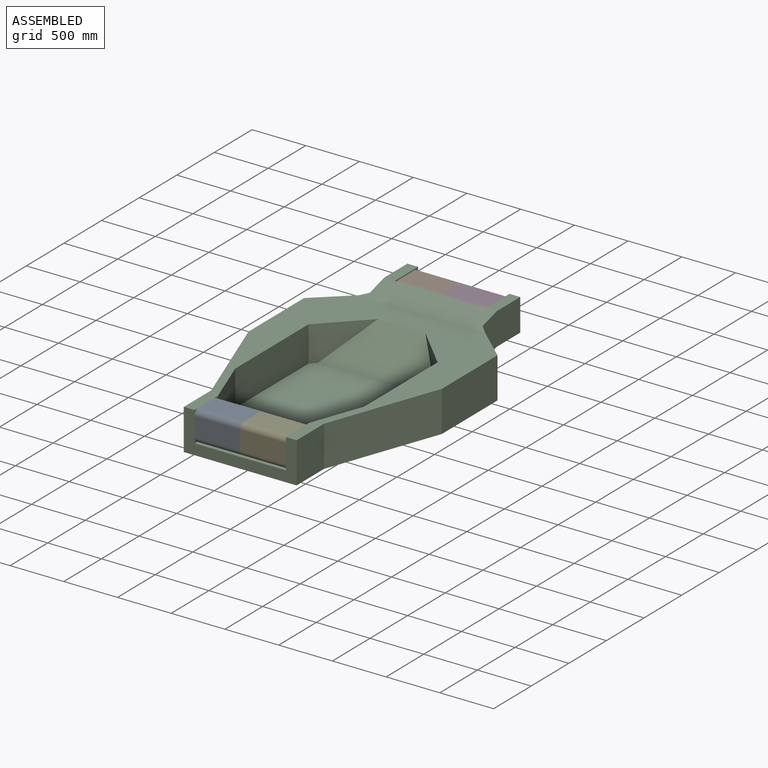
[diagram: assembled view]
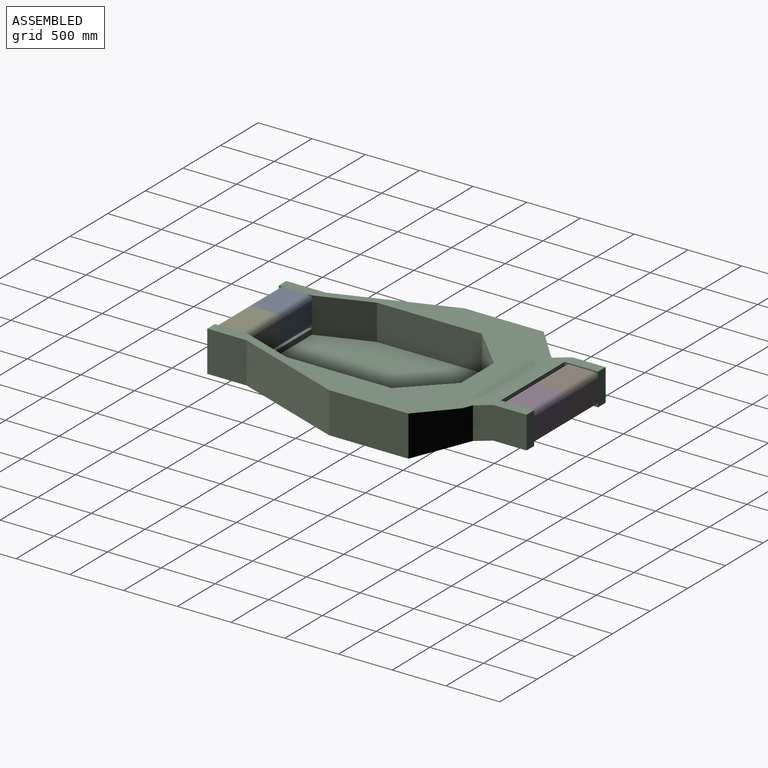
[diagram: assembled view, second angle]
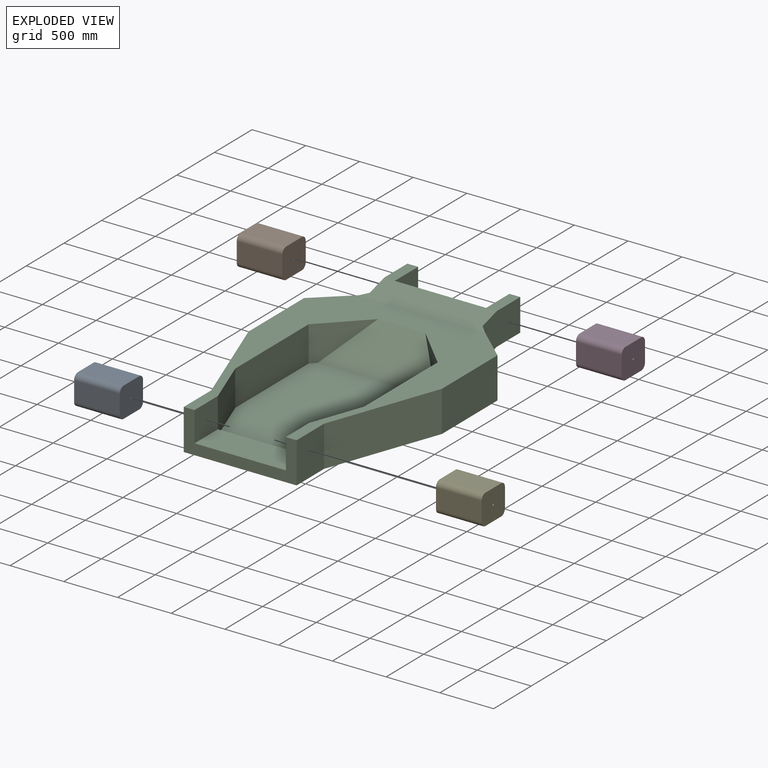
[diagram: exploded view]
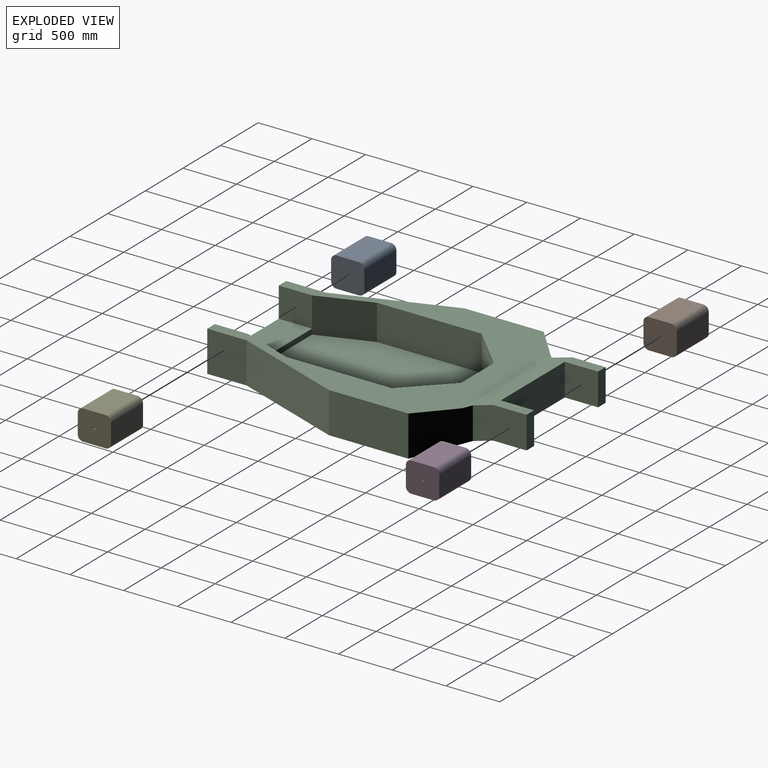
[diagram: exploded view, second angle]
ASSEMBLY  parts=5 mates=4
PART A: 22 faces, bbox 310x425x280 mm
  f0: plane 360x180mm, normal (-1,0,0), area 64800mm2, adj f1,f7,f8,f9
  f1: cylinder r=35mm len=360mm, axis (0,-1,0), area 19792mm2, adj f0,f2,f8,f9
  f2: plane 360x210mm, normal (0,0,-1), area 75600mm2, adj f1,f3,f8,f9
  f3: cylinder r=35mm len=360mm, axis (0,-1,0), area 19792mm2, adj f2,f4,f8,f9
  f4: plane 360x180mm, normal (1,0,0), area 64800mm2, adj f3,f5,f8,f9
  f5: cylinder r=35mm len=360mm, axis (0,-1,0), area 19792mm2, adj f4,f6,f8,f9
  f6: plane 360x210mm, normal (0,0,1), area 75600mm2, adj f5,f7,f8,f9
  f7: cylinder r=35mm len=360mm, axis (0,-1,0), area 19792mm2, adj f0,f6,f8,f9
  f8: plane 280x250mm, normal (0,-1,0), area 68634.3mm2, adj f0,f1,f2,f3,f4,f5,f6,f7
  f9: plane 280x250mm, normal (0,1,0), area 68634.3mm2, adj f0,f1,f2,f3,f4,f5,f6,f7
  f10: cylinder r=10mm len=30mm, axis (0,-1,0), area 1885mm2, adj f9,f16
  f11: cylinder r=10mm len=35mm, axis (0,-1,0), area 2199.1mm2, adj f8,f17
  f12: plane 425x210mm, normal (0,0,1), area 89250mm2, adj f16,f17,f18,f21
  f13: plane 425x180mm, normal (1,0,0), area 76500mm2, adj f16,f17,f18,f19
  f14: plane 425x210mm, normal (0,0,-1), area 89250mm2, adj f16,f17,f19,f20
  f15: plane 425x180mm, normal (-1,0,0), area 76500mm2, adj f16,f17,f20,f21
  f16: plane 310x280mm, normal (0,-1,0), area 84339.8mm2, adj f10,f12,f13,f14,f15,f18,f19,f20
  f17: plane 310x280mm, normal (0,1,0), area 84339.8mm2, adj f11,f12,f13,f14,f15,f18,f19,f20
  f18: cylinder r=50mm len=425mm, axis (0,-1,0), area 33379.4mm2, adj f12,f13,f16,f17
  f19: cylinder r=50mm len=425mm, axis (0,1,0), area 33379.4mm2, adj f13,f14,f16,f17
  f20: cylinder r=50mm len=425mm, axis (0,-1,0), area 33379.4mm2, adj f14,f15,f16,f17
  f21: cylinder r=50mm len=425mm, axis (0,1,0), area 33379.4mm2, adj f12,f15,f16,f17
PART B: same geometry as A
PART C: 36 faces, bbox 1800x2972x450 mm
  f0: plane 1507x1200mm, normal (0,0,1), area 1721758.5mm2, adj f3,f4,f5,f6,f31,f33,f34,f35
  f1: plane 300x100mm, normal (0,1,0), area 30000mm2, adj f12,f19,f20,f28
  f2: plane 310x280mm, normal (1,0,0), area 86800mm2, adj f3,f24,f26,f32
  f3: plane 480.81x330mm, normal (0.94,0.34,0), area 168849.7mm2, adj f0,f2,f4,f26,f31
  f4: plane 976.19x330mm, normal (1,0,0), area 322143.2mm2, adj f0,f3,f26,f34
  f5: plane 976.19x330mm, normal (-1,0,0), area 322143.2mm2, adj f0,f6,f26,f33
  f6: plane 480.81x330mm, normal (-0.94,0.34,0), area 168849.7mm2, adj f0,f5,f7,f26,f31
  f7: plane 310x280mm, normal (-1,0,0), area 86800mm2, adj f6,f24,f26,f32
  f8: plane 380x365.46mm, normal (1,0,0), area 138875.7mm2, adj f9,f24,f25,f26
  f9: plane 1030.3x380mm, normal (0.94,-0.34,0), area 416642.1mm2, adj f8,f10,f25,f26
  f10: plane 738.58x380mm, normal (1,0,0), area 280661.2mm2, adj f9,f11,f25,f26
  f11: plane 395.99x375mm, normal (0.67,0.74,0), area 168206.4mm2, adj f10,f12,f26,f27,f29
  f12: plane 500x354.01mm, normal (1,0,0), area 150000mm2, adj f1,f11,f19,f27,f28,f29
  f13: plane 500x354.01mm, normal (-1,0,0), area 150000mm2, adj f14,f18,f23,f27,f29,f30
  f14: plane 395.99x375mm, normal (-0.67,0.74,0), area 168206.4mm2, adj f13,f15,f26,f27,f29
  f15: plane 738.58x380mm, normal (-1,0,0), area 280661.2mm2, adj f14,f16,f25,f26
  f16: plane 1030.3x380mm, normal (-0.94,-0.34,0), area 416642.1mm2, adj f15,f17,f25,f26
  f17: plane 380x365.46mm, normal (-1,0,0), area 138875.7mm2, adj f16,f24,f25,f26
  f18: plane 310x100mm, normal (0,0,1), area 31000mm2, adj f13,f22,f23,f27
  f19: plane 310x100mm, normal (0,0,1), area 31000mm2, adj f1,f12,f20,f27
  f20: plane 310x300mm, normal (-1,0,0), area 93000mm2, adj f1,f19,f21,f28
  f21: plane 850x300mm, normal (0,1,0), area 255000mm2, adj f20,f22,f27,f29
  f22: plane 310x300mm, normal (1,0,0), area 93000mm2, adj f18,f21,f23,f30
  f23: plane 300x100mm, normal (0,1,0), area 30000mm2, adj f13,f18,f22,f30
  f24: plane 1050x380mm, normal (0,-1,0), area 161000mm2, adj f2,f7,f8,f17,f25,f26,f32
  f25: plane 2134.35x1800mm, normal (0,0,-1), area 3181366.4mm2, adj f8,f9,f10,f15,f16,f17,f24,f29
  f26: plane 2415.76x1800mm, normal (0,0,1), area 1360599.6mm2, adj f2,f3,f4,f5,f6,f7,f8,f9
  f27: plane 1174.92x246.24mm, normal (0,-0.27,0.96), area 272445.2mm2, adj f11,f12,f13,f14,f18,f19,f21,f26
  f28: plane 310x100mm, normal (0,0,-1), area 31000mm2, adj f1,f12,f20,f29
  f29: plane 1800x527.65mm, normal (0,0.27,-0.96), area 707622.4mm2, adj f11,f12,f13,f14,f21,f25,f28,f30
  f30: plane 310x100mm, normal (0,0,-1), area 31000mm2, adj f13,f22,f23,f29
  f31: plane 850x50mm, normal (0,1,0), area 42500mm2, adj f0,f3,f6,f32
  f32: plane 850x310mm, normal (0,0,1), area 263500mm2, adj f2,f7,f24,f31
  f33: plane 380x380mm, normal (-0.71,-0.71,0), area 100338.5mm2, adj f0,f5,f26,f35
  f34: plane 380x380mm, normal (0.71,-0.71,0), area 100338.5mm2, adj f0,f4,f26,f35
  f35: plane 1100x330mm, normal (0,-0.71,0.71), area 359351.7mm2, adj f0,f26,f33,f34
PART D: same geometry as A
PART E: same geometry as A
PLACE A rot(axis=(0,0,1),90deg) t=(-354,295,220)mm
PLACE B rot(axis=(0,0,1),90deg) t=(-354,2957,280)mm
PLACE C at identity
PLACE D rot(axis=(0,0,1),90deg) t=(71,2957,280)mm
PLACE E rot(axis=(0,0,1),90deg) t=(71,295,220)mm
MATE fastened B.f10 <-> D.f10  axis (1,0,0) through (0,2662,300)mm
MATE fastened B.f10 <-> C.f22  axis (-1,0,0) through (-425,2662,300)mm
MATE fastened E.f10 <-> A.f10  axis (-1,0,0) through (0,0,240)mm
MATE fastened A.f10 <-> C.f2  axis (-1,0,0) through (-425,0,240)mm
